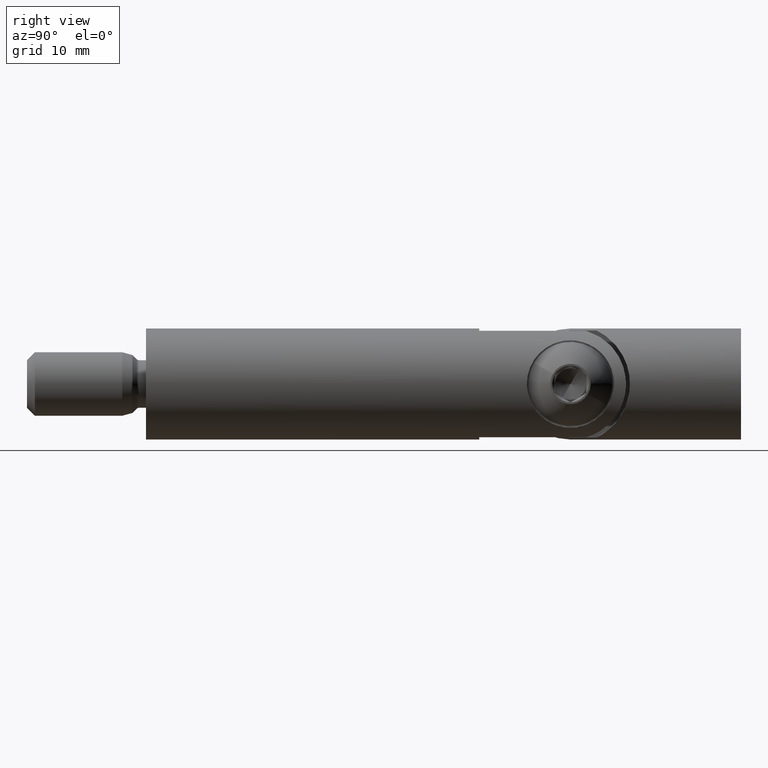
[diagram: clean part render]
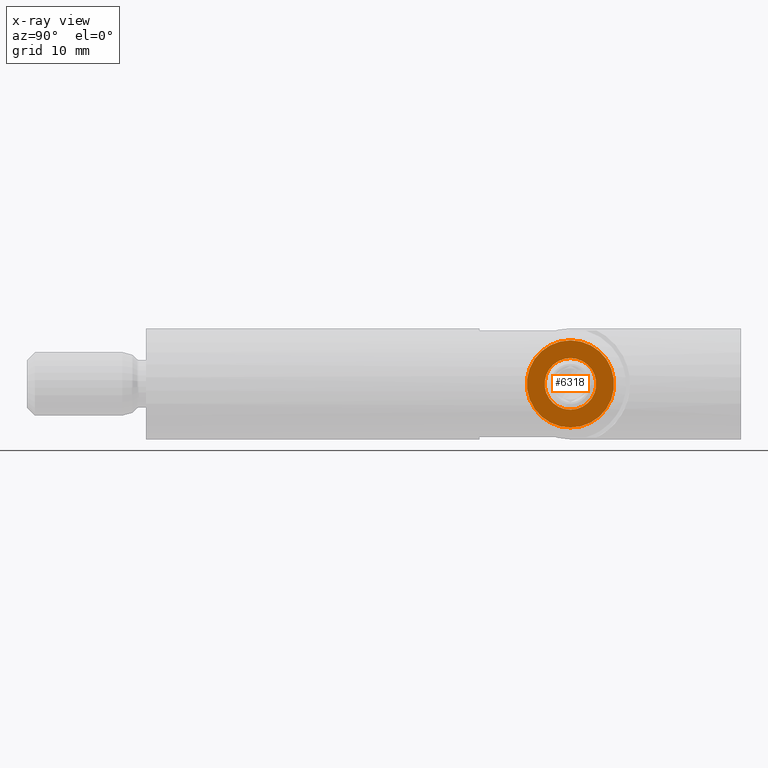
[diagram: x-ray — body ghosted, one internal face saturated and labeled with its STEP entity id]
A machine part, right view, then the same camera in x-ray: the body is ghosted and one INTERNAL B-rep face — a face not visible from any outside direction — is saturated and labeled: STEP entity #6318.
In plain terms, the highlighted planar face has unit normal (-1, 0, 0).
Its self-contained STEP definition (entity closure, byte-faithful):
#71 = EDGE_LOOP ( 'NONE', ( #13910, #9461 ) ) ;
#345 = ORIENTED_EDGE ( 'NONE', *, *, #10021, .T. ) ;
#613 = EDGE_CURVE ( 'NONE', #702, #5012, #4754, .T. ) ;
#702 = VERTEX_POINT ( 'NONE', #4440 ) ;
#947 = AXIS2_PLACEMENT_3D ( 'NONE', #2776, #3908, #14178 ) ;
#1396 = AXIS2_PLACEMENT_3D ( 'NONE', #13786, #4792, #12675 ) ;
#1499 = ORIENTED_EDGE ( 'NONE', *, *, #13225, .T. ) ;
#2205 = VERTEX_POINT ( 'NONE', #2221 ) ;
#2221 = CARTESIAN_POINT ( 'NONE',  ( 4.000000000000000000, 53.50000000000000000, 5.499999999999998200 ) ) ;
#2505 = CIRCLE ( 'NONE', #3858, 3.249999999999996000 ) ;
#2647 = CIRCLE ( 'NONE', #14538, 5.499999999999998200 ) ;
#2776 = CARTESIAN_POINT ( 'NONE',  ( 4.000000000000000000, 56.74999999999999300, 0.0000000000000000000 ) ) ;
#2882 = DIRECTION ( 'NONE',  ( 0.0000000000000000000, 0.0000000000000000000, -1.000000000000000000 ) ) ;
#3858 = AXIS2_PLACEMENT_3D ( 'NONE', #14137, #10812, #12919 ) ;
#3908 = DIRECTION ( 'NONE',  ( -1.000000000000000000, 0.0000000000000000000, 0.0000000000000000000 ) ) ;
#3946 = EDGE_CURVE ( 'NONE', #5012, #702, #2505, .T. ) ;
#4440 = CARTESIAN_POINT ( 'NONE',  ( 4.000000000000000000, 53.50000000000000000, 3.249999999999996000 ) ) ;
#4754 = CIRCLE ( 'NONE', #1396, 3.249999999999996000 ) ;
#4792 = DIRECTION ( 'NONE',  ( 1.000000000000000000, -0.0000000000000000000, -0.0000000000000000000 ) ) ;
#4868 = DIRECTION ( 'NONE',  ( 0.0000000000000000000, 0.0000000000000000000, -1.000000000000000000 ) ) ;
#5012 = VERTEX_POINT ( 'NONE', #8119 ) ;
#6004 = CARTESIAN_POINT ( 'NONE',  ( 4.000000000000000000, 53.50000000000000000, 0.0000000000000000000 ) ) ;
#6118 = CIRCLE ( 'NONE', #9286, 5.499999999999998200 ) ;
#6288 = DIRECTION ( 'NONE',  ( 1.000000000000000000, -0.0000000000000000000, -0.0000000000000000000 ) ) ;
#6318 = ADVANCED_FACE ( 'NONE', ( #7980, #9043 ), #13021, .F. ) ;
#7355 = CARTESIAN_POINT ( 'NONE',  ( 4.000000000000000000, 53.50000000000000000, 0.0000000000000000000 ) ) ;
#7980 = FACE_BOUND ( 'NONE', #71, .T. ) ;
#8119 = CARTESIAN_POINT ( 'NONE',  ( 4.000000000000000000, 53.50000000000000000, -3.249999999999996000 ) ) ;
#8357 = EDGE_LOOP ( 'NONE', ( #1499, #345 ) ) ;
#8604 = CARTESIAN_POINT ( 'NONE',  ( 4.000000000000000000, 53.50000000000000000, -5.499999999999998200 ) ) ;
#9043 = FACE_OUTER_BOUND ( 'NONE', #8357, .T. ) ;
#9286 = AXIS2_PLACEMENT_3D ( 'NONE', #7355, #6288, #2882 ) ;
#9461 = ORIENTED_EDGE ( 'NONE', *, *, #613, .F. ) ;
#10021 = EDGE_CURVE ( 'NONE', #2205, #12660, #2647, .T. ) ;
#10812 = DIRECTION ( 'NONE',  ( 1.000000000000000000, -0.0000000000000000000, -0.0000000000000000000 ) ) ;
#12660 = VERTEX_POINT ( 'NONE', #8604 ) ;
#12675 = DIRECTION ( 'NONE',  ( 0.0000000000000000000, 0.0000000000000000000, -1.000000000000000000 ) ) ;
#12794 = DIRECTION ( 'NONE',  ( 1.000000000000000000, -0.0000000000000000000, -0.0000000000000000000 ) ) ;
#12919 = DIRECTION ( 'NONE',  ( 0.0000000000000000000, 0.0000000000000000000, -1.000000000000000000 ) ) ;
#13021 = PLANE ( 'NONE',  #947 ) ;
#13225 = EDGE_CURVE ( 'NONE', #12660, #2205, #6118, .T. ) ;
#13786 = CARTESIAN_POINT ( 'NONE',  ( 4.000000000000000000, 53.50000000000000000, 0.0000000000000000000 ) ) ;
#13910 = ORIENTED_EDGE ( 'NONE', *, *, #3946, .F. ) ;
#14137 = CARTESIAN_POINT ( 'NONE',  ( 4.000000000000000000, 53.50000000000000000, 0.0000000000000000000 ) ) ;
#14178 = DIRECTION ( 'NONE',  ( 0.0000000000000000000, 0.0000000000000000000, 1.000000000000000000 ) ) ;
#14538 = AXIS2_PLACEMENT_3D ( 'NONE', #6004, #12794, #4868 ) ;